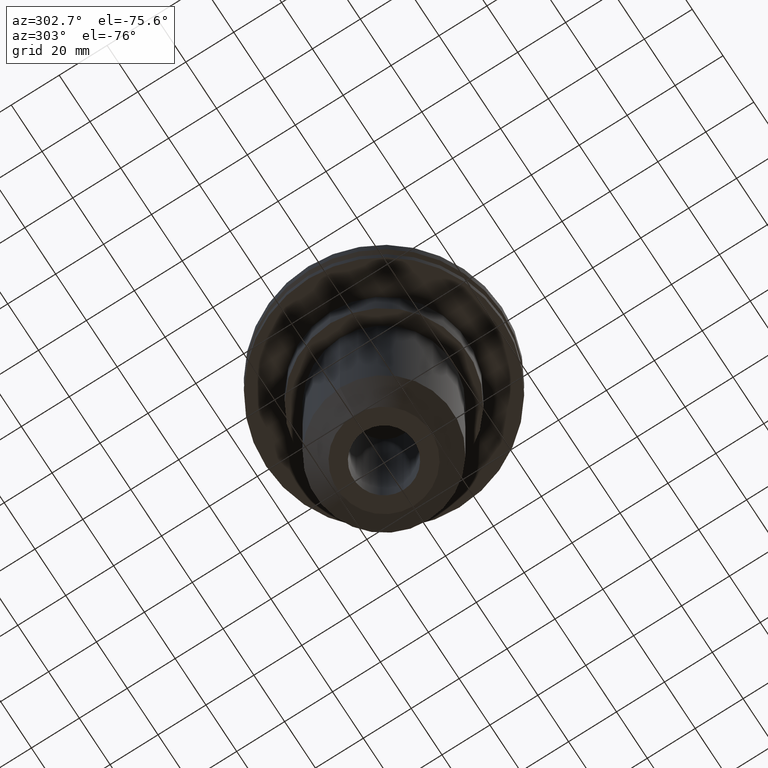
[diagram: clean part render]
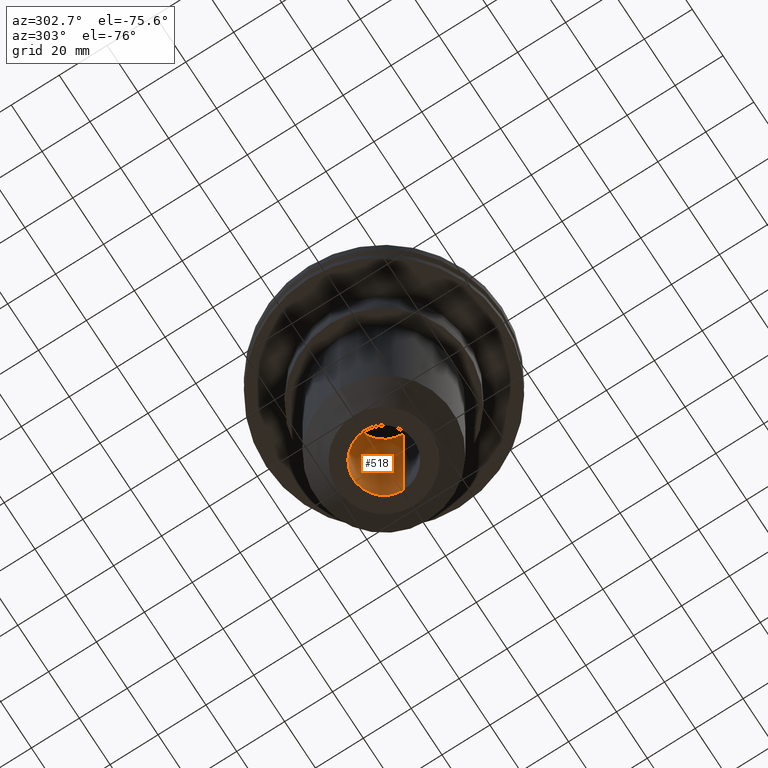
[diagram: same view with one face highlighted and labeled with its STEP entity id]
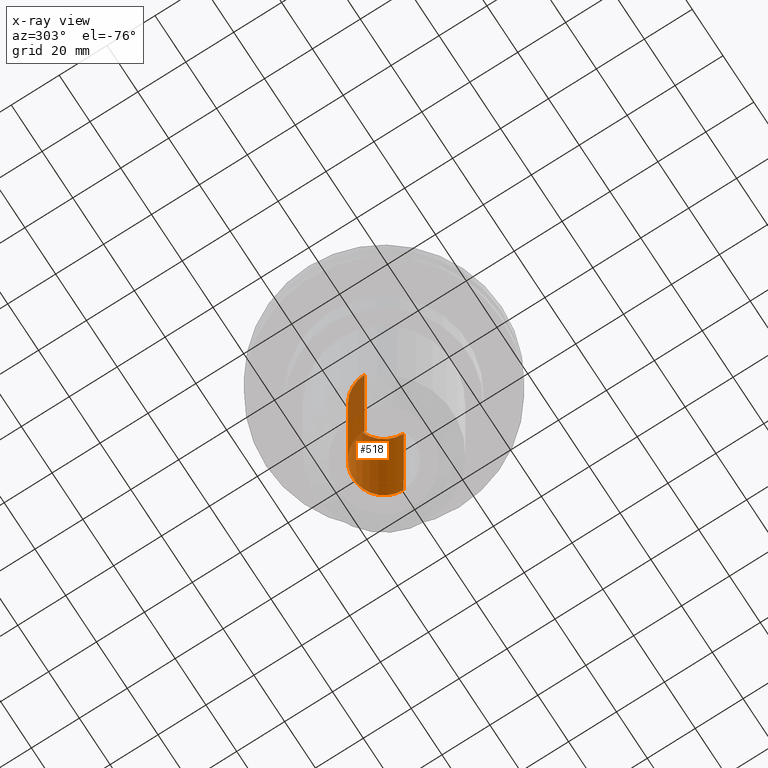
[diagram: x-ray of the same camera — body ghosted, the highlighted face saturated]
A machine part, auxiliary view. The second image highlights one B-rep face of the part: STEP entity #518.
The next image is the same camera in x-ray: the body ghosted, the highlighted face saturated — about 15% of this face is hidden behind the body in this view.
In plain terms, the highlighted cylindrical surface (edge-blend (fillet) strip) has radius 12.7 mm, axis along (-0, -0, 1).
Its self-contained STEP definition (entity closure, byte-faithful):
#17 = ORIENTED_EDGE ( 'NONE', *, *, #525, .T. ) ;
#26 = VERTEX_POINT ( 'NONE', #338 ) ;
#78 = EDGE_CURVE ( 'NONE', #542, #537, #464, .T. ) ;
#170 = DIRECTION ( 'NONE',  ( 1.000000000000000000, 0.000000000000000000, 0.000000000000000000 ) ) ;
#214 = AXIS2_PLACEMENT_3D ( 'NONE', #312, #303, #823 ) ;
#224 = CIRCLE ( 'NONE', #564, 12.69999999999999396 ) ;
#247 = DIRECTION ( 'NONE',  ( 1.000000000000000000, 0.000000000000000000, 0.000000000000000000 ) ) ;
#252 = CARTESIAN_POINT ( 'NONE',  ( 12.69999999999999218, 0.000000000000000000, 0.000000000000000000 ) ) ;
#262 = CARTESIAN_POINT ( 'NONE',  ( -12.69999999999999218, 1.555301434917137841E-15, -35.04999999999999716 ) ) ;
#280 = ORIENTED_EDGE ( 'NONE', *, *, #417, .T. ) ;
#303 = DIRECTION ( 'NONE',  ( -0.000000000000000000, -0.000000000000000000, 1.000000000000000000 ) ) ;
#312 = CARTESIAN_POINT ( 'NONE',  ( 0.000000000000000000, 0.000000000000000000, -35.04999999999999716 ) ) ;
#331 = CYLINDRICAL_SURFACE ( 'NONE', #492, 12.69999999999999218 ) ;
#338 = CARTESIAN_POINT ( 'NONE',  ( 12.69999999999999218, 0.000000000000000000, -35.04999999999999716 ) ) ;
#375 = ORIENTED_EDGE ( 'NONE', *, *, #450, .F. ) ;
#393 = CARTESIAN_POINT ( 'NONE',  ( 0.000000000000000000, 0.000000000000000000, 0.000000000000000000 ) ) ;
#396 = CARTESIAN_POINT ( 'NONE',  ( -12.69999999999999574, 1.555301434917138038E-15, -114.2999999999999972 ) ) ;
#417 = EDGE_CURVE ( 'NONE', #26, #537, #755, .T. ) ;
#450 = EDGE_CURVE ( 'NONE', #610, #542, #224, .T. ) ;
#452 = DIRECTION ( 'NONE',  ( -0.000000000000000000, -0.000000000000000000, 1.000000000000000000 ) ) ;
#464 = LINE ( 'NONE', #714, #472 ) ;
#470 = CARTESIAN_POINT ( 'NONE',  ( 12.69999999999999396, 0.000000000000000000, -114.2999999999999972 ) ) ;
#472 = VECTOR ( 'NONE', #657, 1000.000000000000000 ) ;
#492 = AXIS2_PLACEMENT_3D ( 'NONE', #393, #452, #247 ) ;
#505 = CARTESIAN_POINT ( 'NONE',  ( 0.000000000000000000, 0.000000000000000000, -114.2999999999999972 ) ) ;
#518 = ADVANCED_FACE ( 'NONE', ( #528 ), #331, .F. ) ;
#525 = EDGE_CURVE ( 'NONE', #610, #26, #725, .T. ) ;
#528 = FACE_OUTER_BOUND ( 'NONE', #717, .T. ) ;
#537 = VERTEX_POINT ( 'NONE', #262 ) ;
#542 = VERTEX_POINT ( 'NONE', #396 ) ;
#564 = AXIS2_PLACEMENT_3D ( 'NONE', #505, #690, #170 ) ;
#588 = DIRECTION ( 'NONE',  ( -0.000000000000000000, -0.000000000000000000, 1.000000000000000000 ) ) ;
#610 = VERTEX_POINT ( 'NONE', #470 ) ;
#657 = DIRECTION ( 'NONE',  ( -0.000000000000000000, -0.000000000000000000, 1.000000000000000000 ) ) ;
#690 = DIRECTION ( 'NONE',  ( -0.000000000000000000, -0.000000000000000000, 1.000000000000000000 ) ) ;
#714 = CARTESIAN_POINT ( 'NONE',  ( -12.69999999999999218, 1.555301434917137841E-15, 0.000000000000000000 ) ) ;
#717 = EDGE_LOOP ( 'NONE', ( #804, #375, #17, #280 ) ) ;
#725 = LINE ( 'NONE', #252, #788 ) ;
#755 = CIRCLE ( 'NONE', #214, 12.69999999999999218 ) ;
#788 = VECTOR ( 'NONE', #588, 1000.000000000000000 ) ;
#804 = ORIENTED_EDGE ( 'NONE', *, *, #78, .F. ) ;
#823 = DIRECTION ( 'NONE',  ( 1.000000000000000000, 0.000000000000000000, 0.000000000000000000 ) ) ;